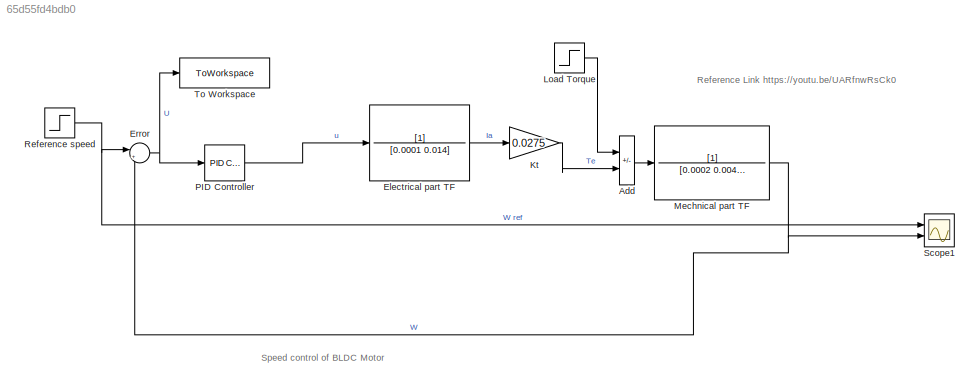
MODEL slx_65d55fd4bdb0
KIND model
CONFIG AbsTol = auto
CONFIG EnableMultiTasking = off
CONFIG FixedStep = auto
CONFIG MaxStep = auto
CONFIG MinStep = auto
CONFIG RelTol = 1e-3
CONFIG SampleTimeConstraint = Unconstrained
CONFIG SolverName = VariableStepAuto
CONFIG StartTime = 0.0
CONFIG StopTime = 10.0
BLOCK [Sum] Add
  IconShape = rectangular
  Inputs = -+
  Ports = [2, 1]
BLOCK [TransferFcn] Electrical part TF
  Denominator = [0.0001 0.014]
BLOCK [Sum] Error
  Inputs = |+-
  Ports = [2, 1]
BLOCK [Gain] Kt
  Gain = 0.0275
BLOCK [Step] Load Torque
  After = 10
  SampleTime = 0
  Time = 0.1
BLOCK [TransferFcn] Mechnical part TF
  Denominator = [0.0002 0.004586]
BLOCK [Reference] PID Controller  REF=pid_lib/PID Controller
  Ports = [1, 1]
  SourceBlock = pid_lib/PID Controller
  SourceProductBaseCode = SL
  SourceType = PID 1dof
BLOCK [Step] Reference speed
  After = 1500
  SampleTime = 0
BLOCK [Scope] Scope1
  Floating = off
  NumInputPorts = 2
  Ports = [2]
  ScopeSpecificationString = Simulink.scopes.TimeScopeBlockCfg('CurrentConfiguration', extmgr.ConfigurationSet(extmgr.Configuration('Core','General UI',true),extmgr.Configuration('Core','Source UI',true),extmgr.Configuration('Sources','WiredSimulink',true,'DataLoggingVariableName','ScopeData1'),extmgr.Configuration('Visuals','Time Domain',true,'SerializedDisplays',{struct('MinYLimReal','-187.5','MaxYLimReal','1687.5','YLabelR...<+2035ch>
BLOCK [ToWorkspace] To Workspace
  FixptAsFi = on
  MaxDataPoints = inf
  Ports = [1]
  SampleTime = -1
  SaveFormat = Timeseries
  VariableName = simout
ANNOTATION (root): Reference Link https://youtu.be/UARfnwRsCk0
ANNOTATION (root): Speed control of BLDC Motor
LINE Add:1 -> Mechnical part TF:1
LINE Electrical part TF:1 -> Kt:1
NET Error:1 -> PID Controller:1, To Workspace:1
LINE Kt:1 -> Add:2
LINE Load Torque:1 -> Add:1
NET Mechnical part TF:1 -> Error:2, Scope1:2
LINE PID Controller:1 -> Electrical part TF:1
NET Reference speed:1 -> Error:1, Scope1:1
note: NET lines group one-source signal fan-out (src -> all destinations, sorted); 1:1 wires keep LINE
